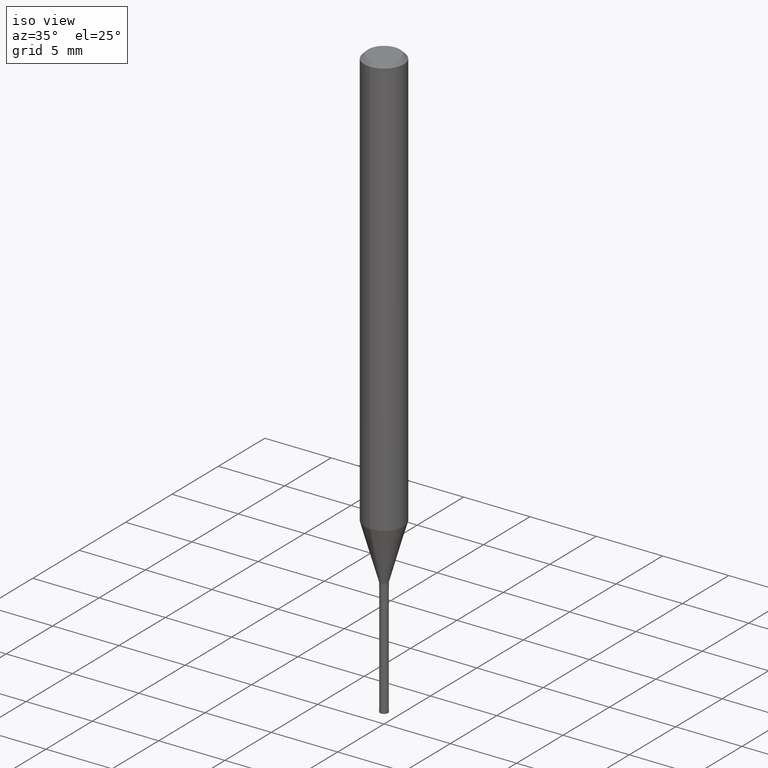
[diagram: clean part render]
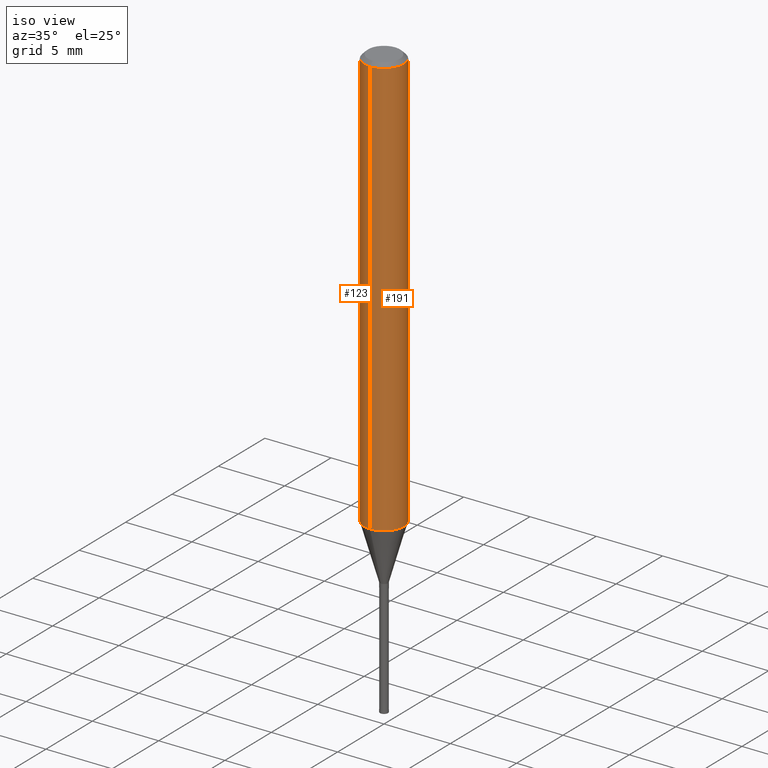
[diagram: same view with one multi-face feature highlighted, each face labeled with its STEP entity id]
A machine part, iso view. The highlighted faces form ONE feature: a constant-radius fillet chain: 2 tangent blend faces with common blend radius 1.5 mm. The faces share edges in the B-rep.
Their STEP definitions:
[1] entity #191 (Cylinder):
#93=VERTEX_POINT('',#228);
#99=VERTEX_POINT('',#234);
#107=VERTEX_POINT('',#244);
#111=EDGE_CURVE('',#179,#99,#249,.T.);
#121=EDGE_CURVE('',#179,#107,#262,.T.);
#159=EDGE_CURVE('',#107,#93,#304,.T.);
#179=VERTEX_POINT('',#325);
#191=ADVANCED_FACE('',(#337),#338,.T.);
#201=EDGE_CURVE('',#93,#99,#349,.T.);
#228=CARTESIAN_POINT('',(1.83690953073357E-016,-1.5,-31.815));
#234=CARTESIAN_POINT('',(1.83690953073357E-016,-1.5,-0.300000000000001));
#244=CARTESIAN_POINT('',(0.0,1.5,-31.815));
#249=CIRCLE('',#395,1.5);
#262=LINE('',#409,#410);
#304=CIRCLE('',#470,1.5);
#325=CARTESIAN_POINT('',(0.0,1.5,-0.300000000000001));
#337=FACE_OUTER_BOUND('',#512,.T.);
#338=CYLINDRICAL_SURFACE('',#513,1.5);
#349=LINE('',#526,#527);
#395=AXIS2_PLACEMENT_3D('',#563,#564,#565);
#409=CARTESIAN_POINT('',(-1.83690953073357E-016,1.5,-16.0575));
#410=VECTOR('',#588,1.0);
#470=AXIS2_PLACEMENT_3D('',#639,#640,#641);
#512=EDGE_LOOP('',(#670,#671,#672,#673));
#513=AXIS2_PLACEMENT_3D('',#674,#675,#676);
#526=CARTESIAN_POINT('',(1.83690953073357E-016,-1.5,-16.0575));
#527=VECTOR('',#687,1.0);
#563=CARTESIAN_POINT('',(0.0,0.0,-0.300000000000001));
#564=DIRECTION('',(0.0,0.0,-1.0));
#565=DIRECTION('',(0.0,1.0,0.0));
#588=DIRECTION('',(0.0,0.0,-1.0));
#639=CARTESIAN_POINT('',(0.0,0.0,-31.815));
#640=DIRECTION('',(0.0,0.0,-1.0));
#641=DIRECTION('',(0.0,1.0,0.0));
#670=ORIENTED_EDGE('',*,*,#121,.F.);
#671=ORIENTED_EDGE('',*,*,#111,.T.);
#672=ORIENTED_EDGE('',*,*,#201,.F.);
#673=ORIENTED_EDGE('',*,*,#159,.F.);
#674=CARTESIAN_POINT('',(0.0,0.0,-16.0575));
#675=DIRECTION('',(-0.0,-0.0,1.0));
#676=DIRECTION('',(0.0,1.0,0.0));
#687=DIRECTION('',(-0.0,-0.0,1.0));
[2] entity #123 (Cylinder):
#93=VERTEX_POINT('',#228);
#99=VERTEX_POINT('',#234);
#107=VERTEX_POINT('',#244);
#121=EDGE_CURVE('',#179,#107,#262,.T.);
#123=ADVANCED_FACE('',(#264),#265,.T.);
#165=EDGE_CURVE('',#99,#179,#310,.T.);
#171=EDGE_CURVE('',#93,#107,#316,.T.);
#179=VERTEX_POINT('',#325);
#201=EDGE_CURVE('',#93,#99,#349,.T.);
#228=CARTESIAN_POINT('',(1.83690953073357E-016,-1.5,-31.815));
#234=CARTESIAN_POINT('',(1.83690953073357E-016,-1.5,-0.300000000000001));
#244=CARTESIAN_POINT('',(0.0,1.5,-31.815));
#262=LINE('',#409,#410);
#264=FACE_OUTER_BOUND('',#412,.T.);
#265=CYLINDRICAL_SURFACE('',#413,1.5);
#310=CIRCLE('',#479,1.5);
#316=CIRCLE('',#485,1.5);
#325=CARTESIAN_POINT('',(0.0,1.5,-0.300000000000001));
#349=LINE('',#526,#527);
#409=CARTESIAN_POINT('',(-1.83690953073357E-016,1.5,-16.0575));
#410=VECTOR('',#588,1.0);
#412=EDGE_LOOP('',(#590,#591,#592,#593));
#413=AXIS2_PLACEMENT_3D('',#594,#595,#596);
#479=AXIS2_PLACEMENT_3D('',#643,#644,#645);
#485=AXIS2_PLACEMENT_3D('',#647,#648,#649);
#526=CARTESIAN_POINT('',(1.83690953073357E-016,-1.5,-16.0575));
#527=VECTOR('',#687,1.0);
#588=DIRECTION('',(0.0,0.0,-1.0));
#590=ORIENTED_EDGE('',*,*,#121,.T.);
#591=ORIENTED_EDGE('',*,*,#171,.F.);
#592=ORIENTED_EDGE('',*,*,#201,.T.);
#593=ORIENTED_EDGE('',*,*,#165,.T.);
#594=CARTESIAN_POINT('',(0.0,0.0,-16.0575));
#595=DIRECTION('',(-0.0,-0.0,1.0));
#596=DIRECTION('',(0.0,1.0,0.0));
#643=CARTESIAN_POINT('',(0.0,0.0,-0.300000000000001));
#644=DIRECTION('',(0.0,0.0,-1.0));
#645=DIRECTION('',(0.0,1.0,0.0));
#647=CARTESIAN_POINT('',(0.0,0.0,-31.815));
#648=DIRECTION('',(0.0,0.0,-1.0));
#649=DIRECTION('',(0.0,1.0,0.0));
#687=DIRECTION('',(-0.0,-0.0,1.0));